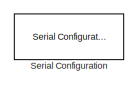
[diagram: root canvas - part 1/2, top left region]
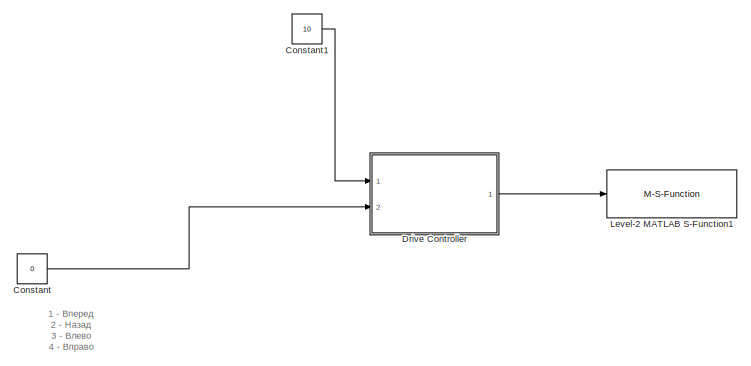
[diagram: root canvas - part 2/2, right side, full height]
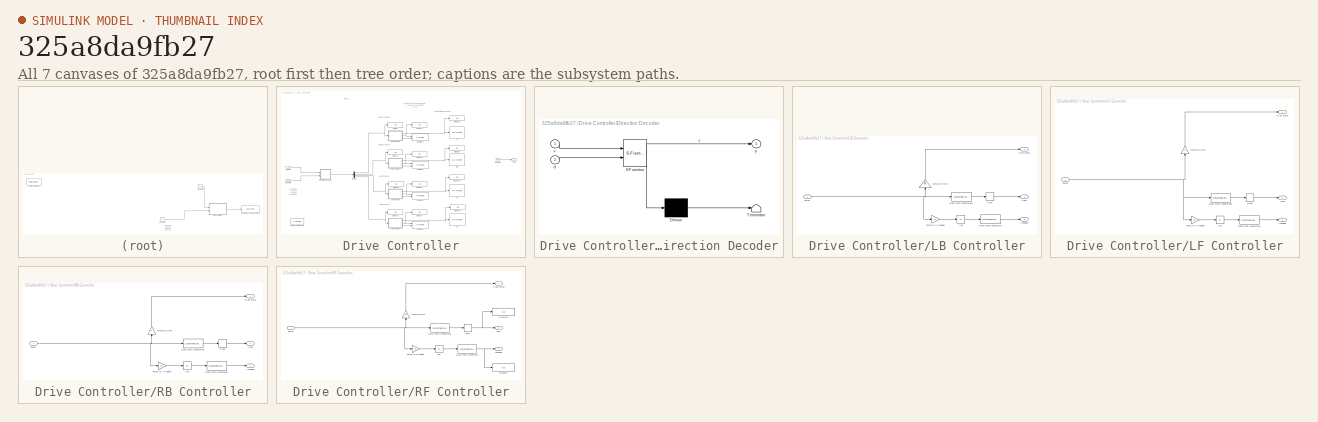
[diagram: thumbnail index - all 7 canvases of the model, root first then tree order]
MODEL slx_325a8da9fb27
KIND model
CONFIG AbsTol = auto
CONFIG FixedStep = auto
CONFIG MaxStep = auto
CONFIG MinStep = auto
CONFIG RelTol = 1e-3
CONFIG SampleTimeConstraint = Unconstrained
CONFIG Solver = FixedStepDiscrete
CONFIG SolverMode = Auto
CONFIG SolverName = FixedStepDiscrete
CONFIG StartTime = 0.0
CONFIG StopTime = 10.0
BLOCK [Constant] Constant
  OutDataTypeStr = int8
  Value = 0
BLOCK [Constant] Constant1
  Value = 10
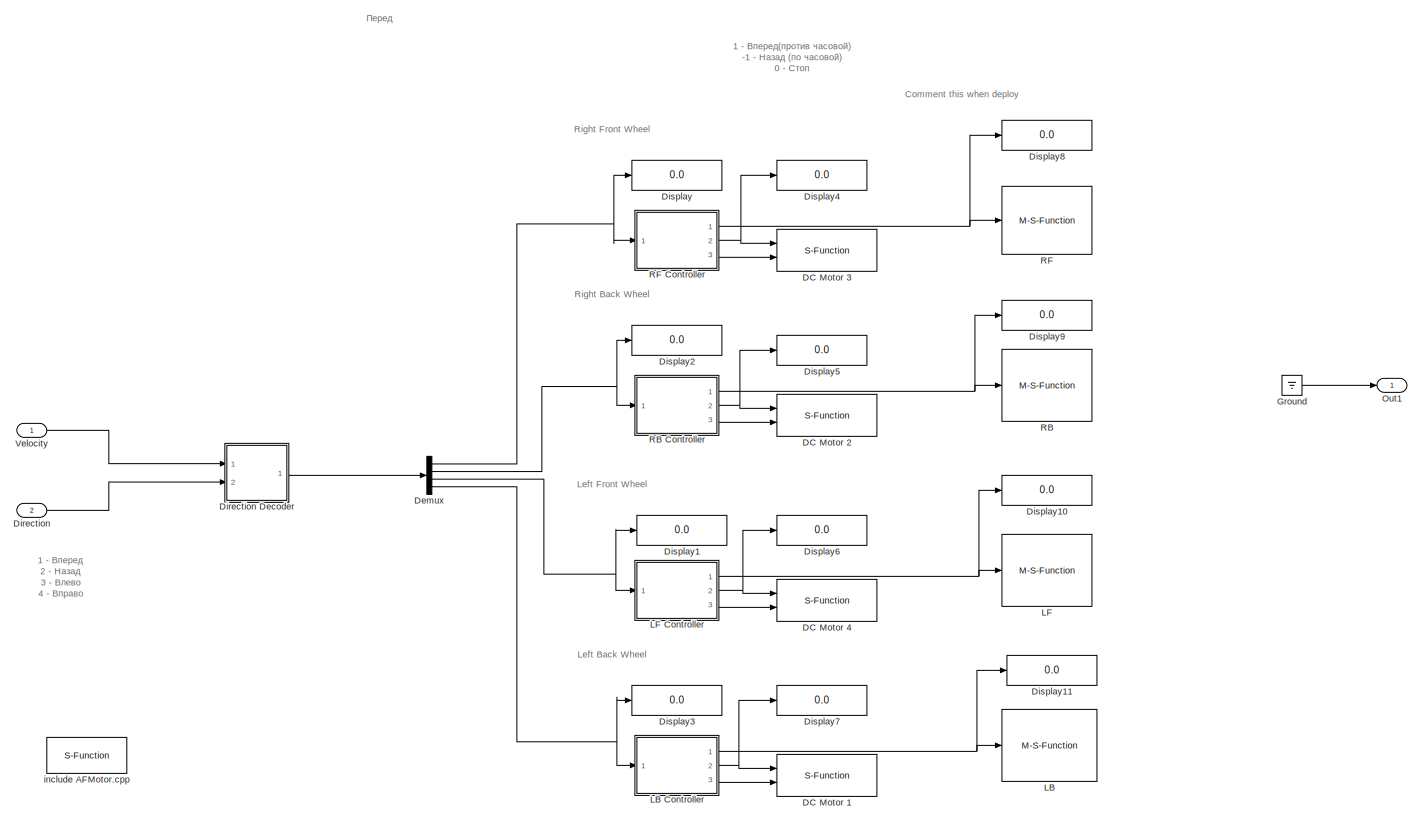
[diagram: Drive Controller - part 1/1, most of the canvas]
BLOCK [SubSystem] Drive Controller
  Ports = [2, 1]
  RequestExecContextInheritance = off
BLOCK [S-Function] Drive Controller/DC Motor 1
  CopyFcn = set_param(gcbh,'LinkStatus','none')
  FunctionName = dcm_slsp
  InitFcn = try, set_param(gcb,'FunctionName','dcm_slsp'), end
  OpenFcn = sfunctionwizard(gcbh)
  Parameters = uint8(1)
  Ports = [2]
  PreSaveFcn = try, set_param(gcb,'FunctionName','dcm_slsp'), end
  SFunctionModules = dcm_slsp_wrapper
BLOCK [S-Function] Drive Controller/DC Motor 2
  CopyFcn = set_param(gcbh,'LinkStatus','none')
  FunctionName = dcm_slsp
  InitFcn = try, set_param(gcb,'FunctionName','dcm_slsp'), end
  OpenFcn = sfunctionwizard(gcbh)
  Parameters = uint8(2)
  Ports = [2]
  PreSaveFcn = try, set_param(gcb,'FunctionName','dcm_slsp'), end
  SFunctionModules = dcm_slsp_wrapper
BLOCK [S-Function] Drive Controller/DC Motor 3
  CopyFcn = set_param(gcbh,'LinkStatus','none')
  FunctionName = dcm_slsp
  InitFcn = try, set_param(gcb,'FunctionName','dcm_slsp'), end
  OpenFcn = sfunctionwizard(gcbh)
  Parameters = uint8(3)
  Ports = [2]
  PreSaveFcn = try, set_param(gcb,'FunctionName','dcm_slsp'), end
  SFunctionModules = dcm_slsp_wrapper
BLOCK [S-Function] Drive Controller/DC Motor 4
  CopyFcn = set_param(gcbh,'LinkStatus','none')
  FunctionName = dcm_slsp
  InitFcn = try, set_param(gcb,'FunctionName','dcm_slsp'), end
  OpenFcn = sfunctionwizard(gcbh)
  Parameters = uint8(4)
  Ports = [2]
  PreSaveFcn = try, set_param(gcb,'FunctionName','dcm_slsp'), end
  SFunctionModules = dcm_slsp_wrapper
BLOCK [Demux] Drive Controller/Demux
  DisplayOption = bar
  Ports = [1, 4]
BLOCK [Inport] Drive Controller/Direction
  IconDisplay = Port number
  Port = 2
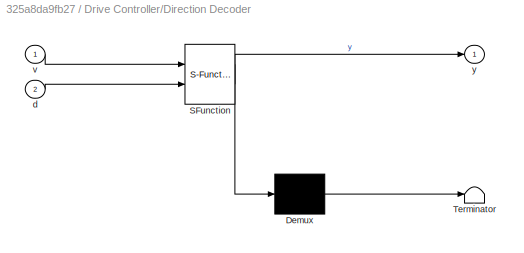
BLOCK [SubSystem] Drive Controller/Direction Decoder
  ErrorFcn = Stateflow.Translate.translate
  PermitHierarchicalResolution = ExplicitOnly
  Ports = [2, 1]
  RequestExecContextInheritance = off
  SFBlockType = Chart
  TreatAsAtomicUnit = on
BLOCK [Demux] Drive Controller/Direction Decoder/ Demux 
  Outputs = 1
  Ports = [1, 1]
BLOCK [S-Function] Drive Controller/Direction Decoder/ SFunction 
  EnableBusSupport = on
  FunctionName = sf_sfun
  PortCounts = [2 2]
  Ports = [2, 2]
  Tag = Stateflow S-Function robot1v1 3
BLOCK [Terminator] Drive Controller/Direction Decoder/ Terminator 
BLOCK [Inport] Drive Controller/Direction Decoder/d
  IconDisplay = Port number
  Port = 2
BLOCK [Inport] Drive Controller/Direction Decoder/v
  IconDisplay = Port number
BLOCK [Outport] Drive Controller/Direction Decoder/y
  IconDisplay = Port number
BLOCK [Display] Drive Controller/Display
  Decimation = 1
  Ports = [1]
BLOCK [Display] Drive Controller/Display1
  Decimation = 1
  Ports = [1]
BLOCK [Display] Drive Controller/Display10
  Decimation = 1
  Ports = [1]
BLOCK [Display] Drive Controller/Display11
  Decimation = 1
  Ports = [1]
BLOCK [Display] Drive Controller/Display2
  Decimation = 1
  Ports = [1]
BLOCK [Display] Drive Controller/Display3
  Decimation = 1
  Ports = [1]
BLOCK [Display] Drive Controller/Display4
  Decimation = 1
  Ports = [1]
BLOCK [Display] Drive Controller/Display5
  Decimation = 1
  Ports = [1]
BLOCK [Display] Drive Controller/Display6
  Decimation = 1
  Ports = [1]
BLOCK [Display] Drive Controller/Display7
  Decimation = 1
  Ports = [1]
BLOCK [Display] Drive Controller/Display8
  Decimation = 1
  Ports = [1]
BLOCK [Display] Drive Controller/Display9
  Decimation = 1
  Ports = [1]
BLOCK [Ground] Drive Controller/Ground
BLOCK [M-S-Function] Drive Controller/LB
  FunctionName = smVrepMotor
  Parameters = addr, port, jname
  Ports = [1]
BLOCK [SubSystem] Drive Controller/LB Controller
  Ports = [1, 3]
  RequestExecContextInheritance = off
BLOCK [Outport] Drive Controller/LB Controller/AFdir
  IconDisplay = Port number
  Port = 2
BLOCK [Outport] Drive Controller/LB Controller/AFspeed
  IconDisplay = Port number
  Port = 3
BLOCK [Abs] Drive Controller/LB Controller/Abs
  SaturateOnIntegerOverflow = off
BLOCK [DataTypeConversion] Drive Controller/LB Controller/Data Type Conversion
  RndMeth = Floor
  SaturateOnIntegerOverflow = off
BLOCK [DataTypeConversion] Drive Controller/LB Controller/Data Type Conversion1
  RndMeth = Floor
  SaturateOnIntegerOverflow = off
BLOCK [Gain] Drive Controller/LB Controller/Device Errors
  OutDataTypeStr = Inherit: Inherit via internal rule
  ParamDataTypeStr = Inherit: Inherit via internal rule
  SaturateOnIntegerOverflow = off
BLOCK [Inport] Drive Controller/LB Controller/Force
  IconDisplay = Port number
BLOCK [Gain] Drive Controller/LB Controller/Force to AF speed
  Gain = 10
  OutDataTypeStr = Inherit: Inherit via internal rule
  ParamDataTypeStr = Inherit: Inherit via internal rule
  SaturateOnIntegerOverflow = off
BLOCK [Signum] Drive Controller/LB Controller/Sign
BLOCK [Outport] Drive Controller/LB Controller/v-rep motor
  IconDisplay = Port number
BLOCK [M-S-Function] Drive Controller/LF
  FunctionName = smVrepMotor
  Parameters = addr, port, jname
  Ports = [1]
BLOCK [SubSystem] Drive Controller/LF Controller
  Ports = [1, 3]
  RequestExecContextInheritance = off
BLOCK [Outport] Drive Controller/LF Controller/AFdir
  IconDisplay = Port number
  Port = 2
BLOCK [Outport] Drive Controller/LF Controller/AFspeed
  IconDisplay = Port number
  Port = 3
BLOCK [Abs] Drive Controller/LF Controller/Abs
  SaturateOnIntegerOverflow = off
BLOCK [DataTypeConversion] Drive Controller/LF Controller/Data Type Conversion
  RndMeth = Floor
  SaturateOnIntegerOverflow = off
BLOCK [DataTypeConversion] Drive Controller/LF Controller/Data Type Conversion1
  RndMeth = Floor
  SaturateOnIntegerOverflow = off
BLOCK [Gain] Drive Controller/LF Controller/Device Errors
  Gain = 1.5
  OutDataTypeStr = Inherit: Inherit via internal rule
  ParamDataTypeStr = Inherit: Inherit via internal rule
  SaturateOnIntegerOverflow = off
BLOCK [Inport] Drive Controller/LF Controller/Force
  IconDisplay = Port number
BLOCK [Gain] Drive Controller/LF Controller/Force to AF speed
  Gain = 10
  OutDataTypeStr = Inherit: Inherit via internal rule
  ParamDataTypeStr = Inherit: Inherit via internal rule
  SaturateOnIntegerOverflow = off
BLOCK [Signum] Drive Controller/LF Controller/Sign
BLOCK [Outport] Drive Controller/LF Controller/v-rep motor
  IconDisplay = Port number
BLOCK [Outport] Drive Controller/Out1
  IconDisplay = Port number
BLOCK [M-S-Function] Drive Controller/RB
  FunctionName = smVrepMotor
  Parameters = addr, port, jname
  Ports = [1]
BLOCK [SubSystem] Drive Controller/RB Controller
  Ports = [1, 3]
  RequestExecContextInheritance = off
BLOCK [Outport] Drive Controller/RB Controller/AFdir
  IconDisplay = Port number
  Port = 2
BLOCK [Outport] Drive Controller/RB Controller/AFspeed
  IconDisplay = Port number
  Port = 3
BLOCK [Abs] Drive Controller/RB Controller/Abs
  SaturateOnIntegerOverflow = off
BLOCK [DataTypeConversion] Drive Controller/RB Controller/Data Type Conversion
  RndMeth = Floor
  SaturateOnIntegerOverflow = off
BLOCK [DataTypeConversion] Drive Controller/RB Controller/Data Type Conversion1
  RndMeth = Floor
  SaturateOnIntegerOverflow = off
BLOCK [Gain] Drive Controller/RB Controller/Device Errors
  OutDataTypeStr = Inherit: Inherit via internal rule
  ParamDataTypeStr = Inherit: Inherit via internal rule
  SaturateOnIntegerOverflow = off
BLOCK [Inport] Drive Controller/RB Controller/Force
  IconDisplay = Port number
BLOCK [Gain] Drive Controller/RB Controller/Force to AF speed
  Gain = 10
  OutDataTypeStr = Inherit: Inherit via internal rule
  ParamDataTypeStr = Inherit: Inherit via internal rule
  SaturateOnIntegerOverflow = off
BLOCK [Signum] Drive Controller/RB Controller/Sign
BLOCK [Outport] Drive Controller/RB Controller/v-rep motor
  IconDisplay = Port number
BLOCK [M-S-Function] Drive Controller/RF
  FunctionName = smVrepMotor
  Parameters = addr, port, jname
  Ports = [1]
BLOCK [SubSystem] Drive Controller/RF Controller
  Ports = [1, 3]
  RequestExecContextInheritance = off
BLOCK [Outport] Drive Controller/RF Controller/AFdir
  IconDisplay = Port number
  Port = 2
BLOCK [Outport] Drive Controller/RF Controller/AFspeed
  IconDisplay = Port number
  Port = 3
BLOCK [Abs] Drive Controller/RF Controller/Abs
  SaturateOnIntegerOverflow = off
BLOCK [DataTypeConversion] Drive Controller/RF Controller/Data Type Conversion
  RndMeth = Floor
  SaturateOnIntegerOverflow = off
BLOCK [DataTypeConversion] Drive Controller/RF Controller/Data Type Conversion1
  RndMeth = Floor
  SaturateOnIntegerOverflow = off
BLOCK [Gain] Drive Controller/RF Controller/Device Errors
  Gain = 1.2
  OutDataTypeStr = Inherit: Inherit via internal rule
  ParamDataTypeStr = Inherit: Inherit via internal rule
  SaturateOnIntegerOverflow = off
BLOCK [Display] Drive Controller/RF Controller/Display
  Decimation = 1
  Ports = [1]
BLOCK [Display] Drive Controller/RF Controller/Display1
  Decimation = 1
  Ports = [1]
BLOCK [Inport] Drive Controller/RF Controller/Force
  IconDisplay = Port number
BLOCK [Gain] Drive Controller/RF Controller/Force to AF speed
  Gain = 10
  OutDataTypeStr = Inherit: Inherit via internal rule
  ParamDataTypeStr = Inherit: Inherit via internal rule
  SaturateOnIntegerOverflow = off
BLOCK [Signum] Drive Controller/RF Controller/Sign
BLOCK [Outport] Drive Controller/RF Controller/v-rep motor
  IconDisplay = Port number
BLOCK [Inport] Drive Controller/Velocity
  IconDisplay = Port number
BLOCK [S-Function] Drive Controller/include AFMotor.cpp
  CopyFcn = set_param(gcbh,'LinkStatus','none')
  FunctionName = afm_slsp
  InitFcn = try, set_param(gcb,'FunctionName','afm_slsp'), end
  OpenFcn = sfunctionwizard(gcbh)
  Ports = []
  PreSaveFcn = try, set_param(gcb,'FunctionName','afm_slsp'), end
  SFunctionModules = afm_slsp_wrapper
BLOCK [M-S-Function] Level-2 MATLAB S-Function1
  FunctionName = smVrepStep
  Parameters = addr, port
  Ports = [1]
BLOCK [Reference] Serial Configuration  REF=instrumentlib/Serial Configuration
  BaudRate = 9600
  ByteOrder = LittleEndian
  ComPort = COM3
  ComPortMenu = <Please select a port...>
  DataBits = 8
  FlowControl = none
  ObjConstructor = serial('COM3');
  Parity = none
  Ports = []
  Priority = -200000
  SourceBlock = instrumentlib/Serial Configuration
  SourceType = Serial Configuration
  StopBits = 1
  Timeout = 10
ANNOTATION (root): 1 - Вперед 2 - Назад 3 - Влево 4 - Вправо
ANNOTATION Drive Controller: 1 - Вперед 2 - Назад 3 - Влево 4 - Вправо
ANNOTATION Drive Controller: 1 - Вперед(против часовой) -1 - Назад (по часовой) 0 - Стоп
ANNOTATION Drive Controller: Comment this when deploy
ANNOTATION Drive Controller: Left Back Wheel
ANNOTATION Drive Controller: Left Front Wheel
ANNOTATION Drive Controller: Right Back Wheel
ANNOTATION Drive Controller: Right Front Wheel
ANNOTATION Drive Controller: Перед
LINE Constant1:1 -> Drive Controller:1
LINE Constant:1 -> Drive Controller:2
NET Drive Controller/Demux:1 -> Drive Controller/Display:1, Drive Controller/RF Controller:1
NET Drive Controller/Demux:2 -> Drive Controller/Display2:1, Drive Controller/RB Controller:1
NET Drive Controller/Demux:3 -> Drive Controller/Display1:1, Drive Controller/LF Controller:1
NET Drive Controller/Demux:4 -> Drive Controller/Display3:1, Drive Controller/LB Controller:1
LINE Drive Controller/Direction Decoder:1 -> Drive Controller/Demux:1
LINE Drive Controller/Direction:1 -> Drive Controller/Direction Decoder:2
LINE Drive Controller/Ground:1 -> Drive Controller/Out1:1
LINE Drive Controller/LB Controller/Abs:1 -> Drive Controller/LB Controller/Data Type Conversion:1
LINE Drive Controller/LB Controller/Data Type Conversion1:1 -> Drive Controller/LB Controller/Sign:1
LINE Drive Controller/LB Controller/Data Type Conversion:1 -> Drive Controller/LB Controller/AFspeed:1
LINE Drive Controller/LB Controller/Device Errors:1 -> Drive Controller/LB Controller/v-rep motor:1
LINE Drive Controller/LB Controller/Force to AF speed:1 -> Drive Controller/LB Controller/Abs:1
NET Drive Controller/LB Controller/Force:1 -> Drive Controller/LB Controller/Data Type Conversion1:1, Drive Controller/LB Controller/Device Errors:1, Drive Controller/LB Controller/Force to AF speed:1
LINE Drive Controller/LB Controller/Sign:1 -> Drive Controller/LB Controller/AFdir:1
NET Drive Controller/LB Controller:1 -> Drive Controller/Display11:1, Drive Controller/LB:1
NET Drive Controller/LB Controller:2 -> Drive Controller/DC Motor 1:1, Drive Controller/Display7:1
LINE Drive Controller/LB Controller:3 -> Drive Controller/DC Motor 1:2
LINE Drive Controller/LF Controller/Abs:1 -> Drive Controller/LF Controller/Data Type Conversion:1
LINE Drive Controller/LF Controller/Data Type Conversion1:1 -> Drive Controller/LF Controller/Sign:1
LINE Drive Controller/LF Controller/Data Type Conversion:1 -> Drive Controller/LF Controller/AFspeed:1
LINE Drive Controller/LF Controller/Device Errors:1 -> Drive Controller/LF Controller/v-rep motor:1
LINE Drive Controller/LF Controller/Force to AF speed:1 -> Drive Controller/LF Controller/Abs:1
NET Drive Controller/LF Controller/Force:1 -> Drive Controller/LF Controller/Data Type Conversion1:1, Drive Controller/LF Controller/Device Errors:1, Drive Controller/LF Controller/Force to AF speed:1
LINE Drive Controller/LF Controller/Sign:1 -> Drive Controller/LF Controller/AFdir:1
NET Drive Controller/LF Controller:1 -> Drive Controller/Display10:1, Drive Controller/LF:1
NET Drive Controller/LF Controller:2 -> Drive Controller/DC Motor 4:1, Drive Controller/Display6:1
LINE Drive Controller/LF Controller:3 -> Drive Controller/DC Motor 4:2
LINE Drive Controller/RB Controller/Abs:1 -> Drive Controller/RB Controller/Data Type Conversion:1
LINE Drive Controller/RB Controller/Data Type Conversion1:1 -> Drive Controller/RB Controller/Sign:1
LINE Drive Controller/RB Controller/Data Type Conversion:1 -> Drive Controller/RB Controller/AFspeed:1
LINE Drive Controller/RB Controller/Device Errors:1 -> Drive Controller/RB Controller/v-rep motor:1
LINE Drive Controller/RB Controller/Force to AF speed:1 -> Drive Controller/RB Controller/Abs:1
NET Drive Controller/RB Controller/Force:1 -> Drive Controller/RB Controller/Data Type Conversion1:1, Drive Controller/RB Controller/Device Errors:1, Drive Controller/RB Controller/Force to AF speed:1
LINE Drive Controller/RB Controller/Sign:1 -> Drive Controller/RB Controller/AFdir:1
NET Drive Controller/RB Controller:1 -> Drive Controller/Display9:1, Drive Controller/RB:1
NET Drive Controller/RB Controller:2 -> Drive Controller/DC Motor 2:1, Drive Controller/Display5:1
LINE Drive Controller/RB Controller:3 -> Drive Controller/DC Motor 2:2
LINE Drive Controller/RF Controller/Abs:1 -> Drive Controller/RF Controller/Data Type Conversion:1
LINE Drive Controller/RF Controller/Data Type Conversion1:1 -> Drive Controller/RF Controller/Sign:1
NET Drive Controller/RF Controller/Data Type Conversion:1 -> Drive Controller/RF Controller/AFspeed:1, Drive Controller/RF Controller/Display:1
LINE Drive Controller/RF Controller/Device Errors:1 -> Drive Controller/RF Controller/v-rep motor:1
LINE Drive Controller/RF Controller/Force to AF speed:1 -> Drive Controller/RF Controller/Abs:1
NET Drive Controller/RF Controller/Force:1 -> Drive Controller/RF Controller/Data Type Conversion1:1, Drive Controller/RF Controller/Device Errors:1, Drive Controller/RF Controller/Force to AF speed:1
NET Drive Controller/RF Controller/Sign:1 -> Drive Controller/RF Controller/AFdir:1, Drive Controller/RF Controller/Display1:1
NET Drive Controller/RF Controller:1 -> Drive Controller/Display8:1, Drive Controller/RF:1
NET Drive Controller/RF Controller:2 -> Drive Controller/DC Motor 3:1, Drive Controller/Display4:1
LINE Drive Controller/RF Controller:3 -> Drive Controller/DC Motor 3:2
LINE Drive Controller/Velocity:1 -> Drive Controller/Direction Decoder:1
LINE Drive Controller:1 -> Level-2 MATLAB S-Function1:1
note: NET lines group one-source signal fan-out (src -> all destinations, sorted); 1:1 wires keep LINE
CHART Drive Controller/Direction Decoder states=5 transitions=5
  STATE_LABEL 'Stop\nentry: y=[0 0 0 0]'
  STATE_LABEL 'Forward\nentry: y=[-v -v v v];'
  STATE_LABEL 'Backward\nentry: y=[v v -v -v];'
  STATE_LABEL 'Left\nentry: y=[-v -v -v -v];'
  STATE_LABEL 'Right\nentry: y=[v v v v];'
